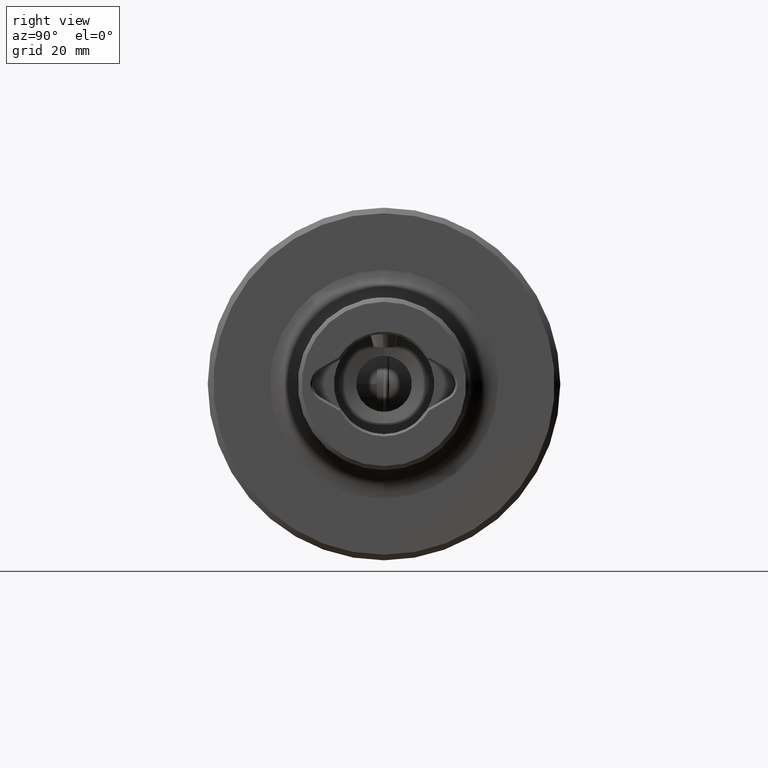
[diagram: clean part render]
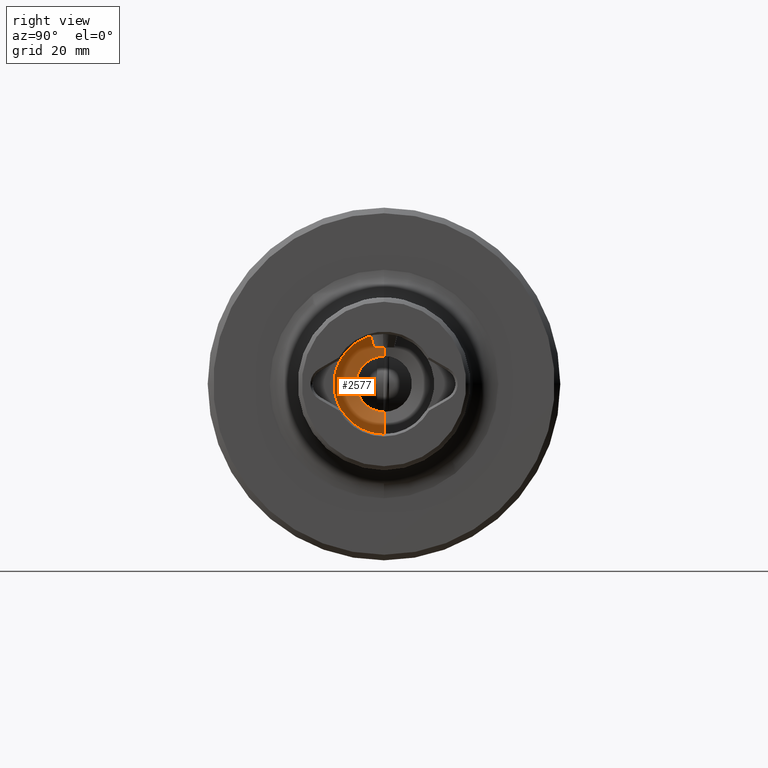
[diagram: same view with one face highlighted and labeled with its STEP entity id]
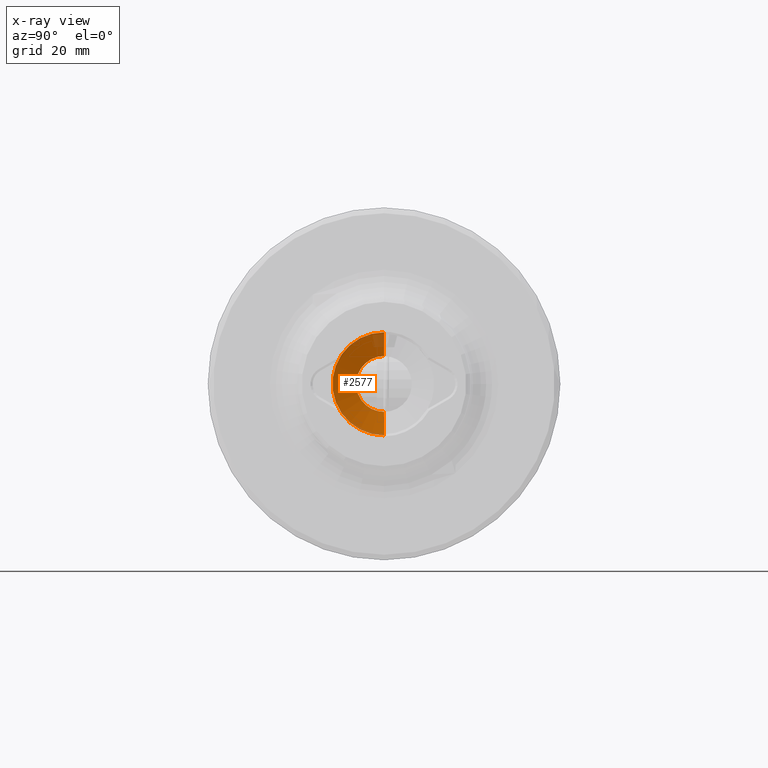
[diagram: x-ray of the same camera — body ghosted, the highlighted face saturated]
A machine part, right view. The second image highlights one B-rep face of the part: STEP entity #2577.
The next image is the same camera in x-ray: the body ghosted, the highlighted face saturated — about 10% of this face is hidden behind the body in this view.
In plain terms, the highlighted conical surface has half-angle 77 deg.
Its self-contained STEP definition (entity closure, byte-faithful):
#214 = ORIENTED_EDGE ( 'NONE', *, *, #1829, .F. ) ;
#228 = VERTEX_POINT ( 'NONE', #5022 ) ;
#237 = DIRECTION ( 'NONE',  ( 0.2249510543438620900, 0.0000000000000000000, -0.9743700647852359100 ) ) ;
#313 = VECTOR ( 'NONE', #237, 1000.000000000000100 ) ;
#339 = CARTESIAN_POINT ( 'NONE',  ( 74.00000000000001400, 0.0000000000000000000, -9.250000000000000000 ) ) ;
#415 = DIRECTION ( 'NONE',  ( 0.2249510543438620900, 1.193259181024238200E-016, 0.9743700647852359100 ) ) ;
#727 = CARTESIAN_POINT ( 'NONE',  ( 73.01881018771636900, 6.123233995736756400E-016, 4.999999999999992000 ) ) ;
#882 = EDGE_LOOP ( 'NONE', ( #3358, #1675, #4883, #214 ) ) ;
#946 = DIRECTION ( 'NONE',  ( 0.0000000000000000000, 0.0000000000000000000, -1.000000000000000000 ) ) ;
#1071 = CARTESIAN_POINT ( 'NONE',  ( 74.00000000000001400, 0.0000000000000000000, -9.250000000000000000 ) ) ;
#1364 = CARTESIAN_POINT ( 'NONE',  ( 74.00000000000001400, 0.0000000000000000000, 0.0000000000000000000 ) ) ;
#1554 = VECTOR ( 'NONE', #415, 1000.000000000000100 ) ;
#1675 = ORIENTED_EDGE ( 'NONE', *, *, #3051, .T. ) ;
#1829 = EDGE_CURVE ( 'NONE', #228, #1955, #2209, .T. ) ;
#1955 = VERTEX_POINT ( 'NONE', #339 ) ;
#2080 = CARTESIAN_POINT ( 'NONE',  ( 74.00000000000001400, 1.132798289211301700E-015, 9.250000000000000000 ) ) ;
#2209 = LINE ( 'NONE', #1071, #313 ) ;
#2254 = CARTESIAN_POINT ( 'NONE',  ( 74.00000000000001400, 1.132798289211301700E-015, 9.250000000000000000 ) ) ;
#2577 = ADVANCED_FACE ( 'NONE', ( #4824 ), #4691, .F. ) ;
#2817 = AXIS2_PLACEMENT_3D ( 'NONE', #1364, #4998, #946 ) ;
#3051 = EDGE_CURVE ( 'NONE', #3525, #4370, #4815, .T. ) ;
#3183 = AXIS2_PLACEMENT_3D ( 'NONE', #3351, #4897, #3285 ) ;
#3285 = DIRECTION ( 'NONE',  ( 0.0000000000000000000, 0.0000000000000000000, -1.000000000000000000 ) ) ;
#3351 = CARTESIAN_POINT ( 'NONE',  ( 73.01881018771636900, 0.0000000000000000000, 0.0000000000000000000 ) ) ;
#3358 = ORIENTED_EDGE ( 'NONE', *, *, #3992, .F. ) ;
#3525 = VERTEX_POINT ( 'NONE', #727 ) ;
#3614 = EDGE_CURVE ( 'NONE', #4370, #1955, #4188, .T. ) ;
#3631 = DIRECTION ( 'NONE',  ( 1.000000000000000000, 0.0000000000000000000, 0.0000000000000000000 ) ) ;
#3803 = CIRCLE ( 'NONE', #3183, 4.999999999999992000 ) ;
#3992 = EDGE_CURVE ( 'NONE', #3525, #228, #3803, .T. ) ;
#3995 = DIRECTION ( 'NONE',  ( 0.0000000000000000000, 0.0000000000000000000, -1.000000000000000000 ) ) ;
#4188 = CIRCLE ( 'NONE', #4357, 9.250000000000000000 ) ;
#4357 = AXIS2_PLACEMENT_3D ( 'NONE', #4745, #3631, #3995 ) ;
#4370 = VERTEX_POINT ( 'NONE', #2254 ) ;
#4691 = CONICAL_SURFACE ( 'NONE', #2817, 9.250000000000000000, 1.343903524035636700 ) ;
#4745 = CARTESIAN_POINT ( 'NONE',  ( 74.00000000000001400, 0.0000000000000000000, 0.0000000000000000000 ) ) ;
#4815 = LINE ( 'NONE', #2080, #1554 ) ;
#4824 = FACE_OUTER_BOUND ( 'NONE', #882, .T. ) ;
#4883 = ORIENTED_EDGE ( 'NONE', *, *, #3614, .T. ) ;
#4897 = DIRECTION ( 'NONE',  ( 1.000000000000000000, -0.0000000000000000000, -0.0000000000000000000 ) ) ;
#4998 = DIRECTION ( 'NONE',  ( 1.000000000000000000, -0.0000000000000000000, -0.0000000000000000000 ) ) ;
#5022 = CARTESIAN_POINT ( 'NONE',  ( 73.01881018771636900, 0.0000000000000000000, -4.999999999999992000 ) ) ;